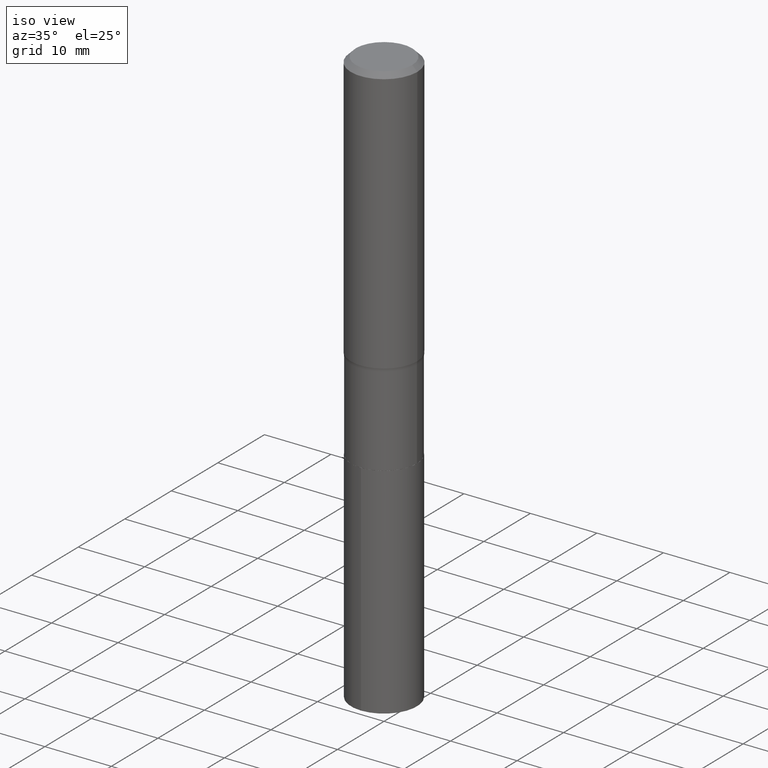
[diagram: clean part render]
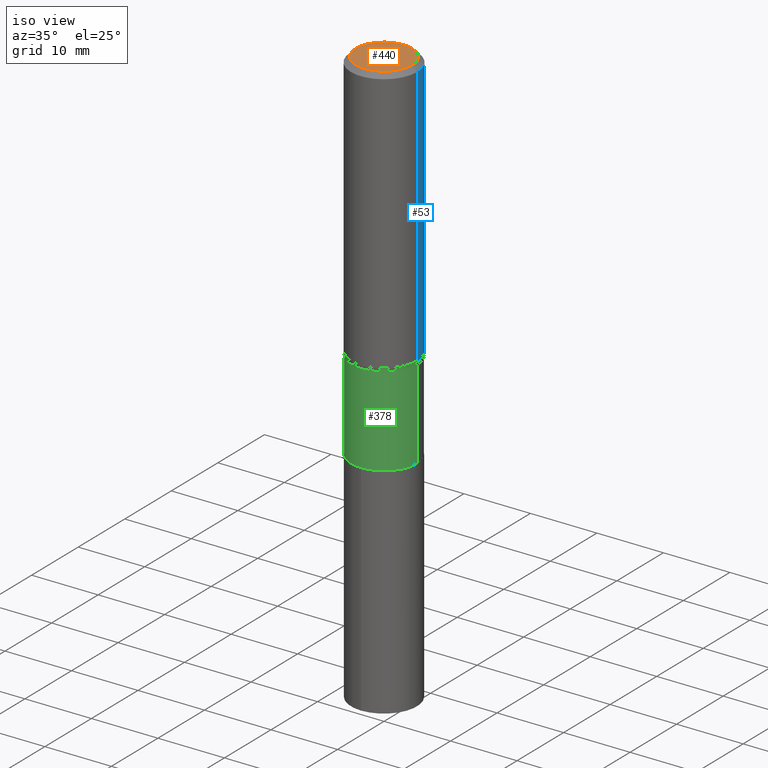
[diagram: same view with three faces highlighted in distinct colors, each labeled with its STEP entity id]
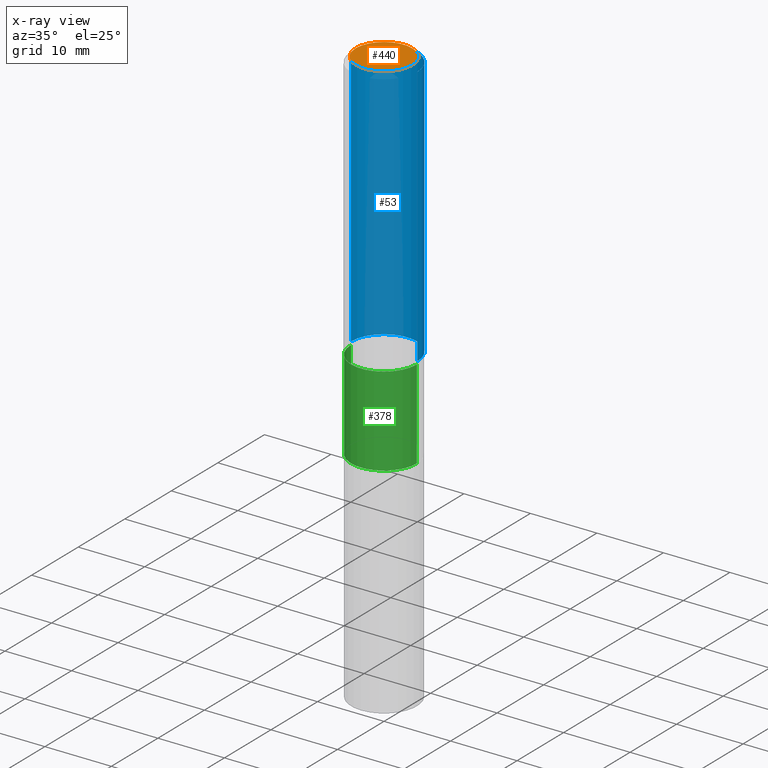
[diagram: x-ray of the same camera — body ghosted, the three highlighted faces saturated]
A machine part, iso view with three faces highlighted in distinct colors.
The next image is the same camera in x-ray (body ghosted, the three faces saturated) — at least one of them is partly hidden behind the body in this view.
Their STEP definitions:

[orange] entity #440 — the highlighted planar face has unit normal (0, -0, -1).
#35 = CIRCLE ( 'NONE', #113, 0.1673224999999999851 ) ;
#37 = VERTEX_POINT ( 'NONE', #105 ) ;
#59 = CARTESIAN_POINT ( 'NONE',  ( -5.008488096090108951E-47, 7.150793614331948590E-33, 2.048068690724054183E-18 ) ) ;
#91 = EDGE_CURVE ( 'NONE', #400, #37, #275, .T. ) ;
#98 = ORIENTED_EDGE ( 'NONE', *, *, #245, .T. ) ;
#105 = CARTESIAN_POINT ( 'NONE',  ( 0.1673224999999999851, -1.300749711163072397E-15, 4.096137381456741925E-18 ) ) ;
#113 = AXIS2_PLACEMENT_3D ( 'NONE', #422, #384, #451 ) ;
#127 = FACE_OUTER_BOUND ( 'NONE', #329, .T. ) ;
#180 = DIRECTION ( 'NONE',  ( 1.000000000000000000, -6.982962677686267499E-15, 4.876294436782262290E-29 ) ) ;
#210 = PLANE ( 'NONE',  #382 ) ;
#245 = EDGE_CURVE ( 'NONE', #37, #400, #35, .T. ) ;
#256 = CARTESIAN_POINT ( 'NONE',  ( -1.001697619218021790E-46, 1.430158722866389718E-32, 4.096137381448108366E-18 ) ) ;
#275 = CIRCLE ( 'NONE', #464, 0.1673224999999999851 ) ;
#284 = DIRECTION ( 'NONE',  ( 2.438088387897960049E-29, -3.491481338843145188E-15, -1.000000000000000000 ) ) ;
#285 = ORIENTED_EDGE ( 'NONE', *, *, #91, .T. ) ;
#329 = EDGE_LOOP ( 'NONE', ( #285, #98 ) ) ;
#360 = CARTESIAN_POINT ( 'NONE',  ( -0.1673224999999999851, 1.219954130253505263E-15, 4.096137381439757534E-18 ) ) ;
#372 = DIRECTION ( 'NONE',  ( -2.445468806185136597E-29, 3.491481338843145583E-15, 1.000000000000000000 ) ) ;
#382 = AXIS2_PLACEMENT_3D ( 'NONE', #59, #284, #394 ) ;
#384 = DIRECTION ( 'NONE',  ( -2.445468806185136597E-29, 3.491481338843145583E-15, 1.000000000000000000 ) ) ;
#394 = DIRECTION ( 'NONE',  ( -1.000000000000000000, 6.982962677686265922E-15, -4.876176775795935793E-29 ) ) ;
#400 = VERTEX_POINT ( 'NONE', #360 ) ;
#422 = CARTESIAN_POINT ( 'NONE',  ( -1.001697619218021790E-46, 1.430158722866389718E-32, 4.096137381448108366E-18 ) ) ;
#440 = ADVANCED_FACE ( 'NONE', ( #127 ), #210, .F. ) ;
#451 = DIRECTION ( 'NONE',  ( 1.000000000000000000, -6.982962677686267499E-15, 4.876294436782262290E-29 ) ) ;
#464 = AXIS2_PLACEMENT_3D ( 'NONE', #256, #372, #180 ) ;

[blue] entity #53 — the highlighted cylindrical surface (partial cylindrical patch) has radius 5 mm, axis along (-0, 0, 1).
#2 = AXIS2_PLACEMENT_3D ( 'NONE', #230, #159, #44 ) ;
#4 = ORIENTED_EDGE ( 'NONE', *, *, #154, .F. ) ;
#43 = CARTESIAN_POINT ( 'NONE',  ( -0.1968500000000002470, -4.109695078470121619E-15, -1.577668020886232814 ) ) ;
#44 = DIRECTION ( 'NONE',  ( 1.000000000000000000, -6.982962677686265922E-15, 0.000000000000000000 ) ) ;
#45 = VERTEX_POINT ( 'NONE', #488 ) ;
#47 = VECTOR ( 'NONE', #74, 39.37007874015748143 ) ;
#53 = ADVANCED_FACE ( 'NONE', ( #408 ), #261, .T. ) ;
#54 = CARTESIAN_POINT ( 'NONE',  ( 0.1968500000000000250, -1.477690918335233294E-15, -0.02952750000000020636 ) ) ;
#71 = LINE ( 'NONE', #179, #47 ) ;
#74 = DIRECTION ( 'NONE',  ( -2.445468806185136877E-29, 3.491481338843145188E-15, 1.000000000000000000 ) ) ;
#87 = CARTESIAN_POINT ( 'NONE',  ( 3.858137931593122664E-29, -5.508398453813880195E-15, -1.577668020886232814 ) ) ;
#100 = ORIENTED_EDGE ( 'NONE', *, *, #316, .T. ) ;
#111 = DIRECTION ( 'NONE',  ( -2.445468806185136597E-29, 3.491481338843145583E-15, 1.000000000000000000 ) ) ;
#131 = EDGE_CURVE ( 'NONE', #280, #45, #71, .T. ) ;
#152 = LINE ( 'NONE', #273, #433 ) ;
#154 = EDGE_CURVE ( 'NONE', #322, #364, #152, .T. ) ;
#159 = DIRECTION ( 'NONE',  ( -2.445468806185136597E-29, 3.491481338843145583E-15, 1.000000000000000000 ) ) ;
#169 = ORIENTED_EDGE ( 'NONE', *, *, #178, .F. ) ;
#178 = EDGE_CURVE ( 'NONE', #364, #45, #463, .T. ) ;
#179 = CARTESIAN_POINT ( 'NONE',  ( -0.1968500000000001082, 1.398703375343757985E-15, -9.682923725166787881E-30 ) ) ;
#215 = DIRECTION ( 'NONE',  ( 1.000000000000000000, -6.982962677686266711E-15, 4.876176775795935793E-29 ) ) ;
#230 = CARTESIAN_POINT ( 'NONE',  ( 7.220858017463212989E-31, -1.030947152326917102E-16, -0.02952750000000020636 ) ) ;
#231 = DIRECTION ( 'NONE',  ( -2.445468806185136597E-29, 3.491481338843145583E-15, 1.000000000000000000 ) ) ;
#261 = CYLINDRICAL_SURFACE ( 'NONE', #307, 0.1968500000000001082 ) ;
#273 = CARTESIAN_POINT ( 'NONE',  ( 0.1968500000000001082, -1.374596203102542397E-15, 9.598753983154305062E-30 ) ) ;
#280 = VERTEX_POINT ( 'NONE', #43 ) ;
#307 = AXIS2_PLACEMENT_3D ( 'NONE', #481, #111, #215 ) ;
#316 = EDGE_CURVE ( 'NONE', #322, #280, #434, .T. ) ;
#319 = AXIS2_PLACEMENT_3D ( 'NONE', #87, #231, #388 ) ;
#322 = VERTEX_POINT ( 'NONE', #416 ) ;
#324 = ORIENTED_EDGE ( 'NONE', *, *, #131, .T. ) ;
#350 = DIRECTION ( 'NONE',  ( -2.445468806185136877E-29, 3.491481338843145188E-15, 1.000000000000000000 ) ) ;
#364 = VERTEX_POINT ( 'NONE', #54 ) ;
#388 = DIRECTION ( 'NONE',  ( 1.000000000000000000, -6.982962677686269866E-15, 0.000000000000000000 ) ) ;
#408 = FACE_OUTER_BOUND ( 'NONE', #435, .T. ) ;
#416 = CARTESIAN_POINT ( 'NONE',  ( 0.1968500000000002470, -6.882994656916424959E-15, -1.577668020886232814 ) ) ;
#433 = VECTOR ( 'NONE', #350, 39.37007874015748143 ) ;
#434 = CIRCLE ( 'NONE', #319, 0.1968500000000002470 ) ;
#435 = EDGE_LOOP ( 'NONE', ( #100, #324, #169, #4 ) ) ;
#463 = CIRCLE ( 'NONE', #2, 0.1968500000000000250 ) ;
#481 = CARTESIAN_POINT ( 'NONE',  ( 0.000000000000000000, 0.000000000000000000, 0.000000000000000000 ) ) ;
#488 = CARTESIAN_POINT ( 'NONE',  ( -0.1968500000000000250, -1.407043209179527561E-15, -0.02952750000000020636 ) ) ;

[green] entity #378 — the highlighted cylindrical surface (partial cylindrical patch) has radius 4.9505 mm, axis along (-0, 0, 1).
#1 = CARTESIAN_POINT ( 'NONE',  ( 3.900522745865292334E-29, -5.568912735454817265E-15, -1.594999999999999751 ) ) ;
#9 = VECTOR ( 'NONE', #236, 39.37007874015748143 ) ;
#27 = CIRCLE ( 'NONE', #356, 0.1948999999999999067 ) ;
#32 = DIRECTION ( 'NONE',  ( -2.445468806185136877E-29, 3.491481338843145188E-15, 1.000000000000000000 ) ) ;
#64 = ORIENTED_EDGE ( 'NONE', *, *, #140, .T. ) ;
#81 = DIRECTION ( 'NONE',  ( -2.445468806185136597E-29, 3.491481338843145583E-15, 1.000000000000000000 ) ) ;
#92 = CARTESIAN_POINT ( 'NONE',  ( 0.1948999999999999344, -1.360979425881052894E-15, 9.503668536026277414E-30 ) ) ;
#106 = EDGE_CURVE ( 'NONE', #237, #266, #379, .T. ) ;
#128 = ORIENTED_EDGE ( 'NONE', *, *, #106, .F. ) ;
#136 = VERTEX_POINT ( 'NONE', #221 ) ;
#140 = EDGE_CURVE ( 'NONE', #237, #136, #156, .T. ) ;
#153 = CARTESIAN_POINT ( 'NONE',  ( -0.1948999999999999067, -5.110005794519583264E-15, -1.594999999999999751 ) ) ;
#155 = DIRECTION ( 'NONE',  ( -2.445468806185136597E-29, 3.491481338843145583E-15, 1.000000000000000000 ) ) ;
#156 = CIRCLE ( 'NONE', #418, 0.1948999999999999899 ) ;
#163 = DIRECTION ( 'NONE',  ( -2.445468806185136597E-29, 3.491481338843145583E-15, 1.000000000000000000 ) ) ;
#171 = CYLINDRICAL_SURFACE ( 'NONE', #259, 0.1948999999999999344 ) ;
#221 = CARTESIAN_POINT ( 'NONE',  ( 0.1948999999999999899, -8.781773863458275496E-15, -2.125399999999999956 ) ) ;
#226 = DIRECTION ( 'NONE',  ( 1.000000000000000000, -6.982962677686269866E-15, 0.000000000000000000 ) ) ;
#235 = ORIENTED_EDGE ( 'NONE', *, *, #301, .F. ) ;
#236 = DIRECTION ( 'NONE',  ( -2.445468806185136877E-29, 3.491481338843145188E-15, 1.000000000000000000 ) ) ;
#237 = VERTEX_POINT ( 'NONE', #345 ) ;
#250 = VECTOR ( 'NONE', #32, 39.37007874015748143 ) ;
#259 = AXIS2_PLACEMENT_3D ( 'NONE', #354, #163, #401 ) ;
#266 = VERTEX_POINT ( 'NONE', #153 ) ;
#281 = CARTESIAN_POINT ( 'NONE',  ( 0.1948999999999999067, -6.929892161335869568E-15, -1.594999999999999751 ) ) ;
#288 = CARTESIAN_POINT ( 'NONE',  ( -0.1948999999999999344, 1.384847791996434796E-15, -9.587004490906808522E-30 ) ) ;
#301 = EDGE_CURVE ( 'NONE', #266, #466, #27, .T. ) ;
#309 = DIRECTION ( 'NONE',  ( 1.000000000000000000, -6.982962677686267499E-15, 0.000000000000000000 ) ) ;
#310 = EDGE_LOOP ( 'NONE', ( #128, #64, #398, #235 ) ) ;
#345 = CARTESIAN_POINT ( 'NONE',  ( -0.1948999999999999899, -5.110005794519583264E-15, -2.125399999999999956 ) ) ;
#354 = CARTESIAN_POINT ( 'NONE',  ( 0.000000000000000000, 0.000000000000000000, 0.000000000000000000 ) ) ;
#356 = AXIS2_PLACEMENT_3D ( 'NONE', #1, #155, #309 ) ;
#369 = CARTESIAN_POINT ( 'NONE',  ( 5.197599400665889285E-29, -7.420794437577220826E-15, -2.125399999999999956 ) ) ;
#378 = ADVANCED_FACE ( 'NONE', ( #391 ), #171, .T. ) ;
#379 = LINE ( 'NONE', #288, #250 ) ;
#391 = FACE_OUTER_BOUND ( 'NONE', #310, .T. ) ;
#398 = ORIENTED_EDGE ( 'NONE', *, *, #419, .T. ) ;
#401 = DIRECTION ( 'NONE',  ( 1.000000000000000000, -6.982962677686266711E-15, 4.876176775795936914E-29 ) ) ;
#418 = AXIS2_PLACEMENT_3D ( 'NONE', #369, #81, #226 ) ;
#419 = EDGE_CURVE ( 'NONE', #136, #466, #468, .T. ) ;
#466 = VERTEX_POINT ( 'NONE', #281 ) ;
#468 = LINE ( 'NONE', #92, #9 ) ;